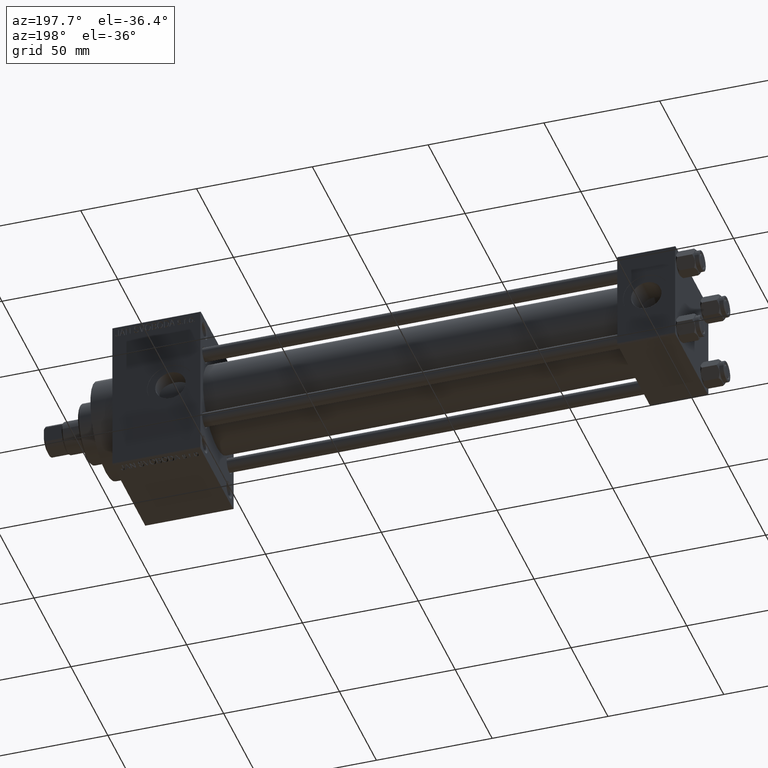
[diagram: clean part render]
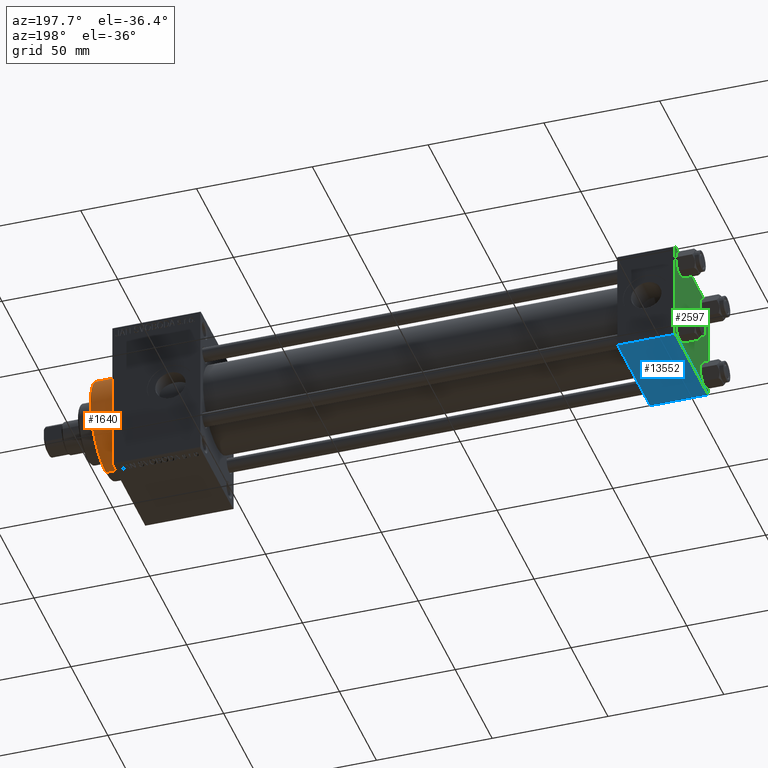
[diagram: same view with three faces highlighted in distinct colors, each labeled with its STEP entity id]
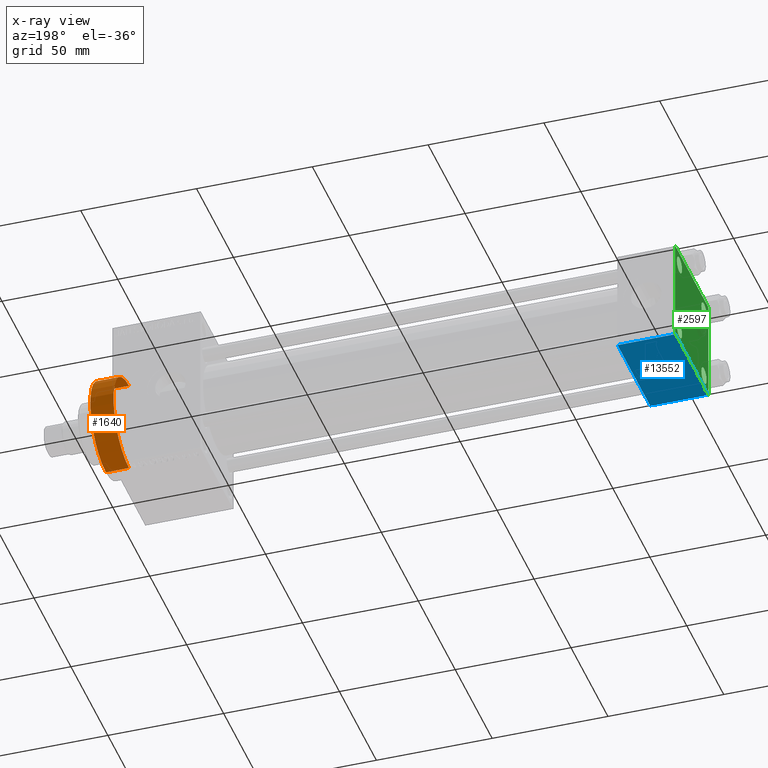
[diagram: x-ray of the same camera — body ghosted, the three highlighted faces saturated]
A machine part, auxiliary view with three faces highlighted in distinct colors.
The next image is the same camera in x-ray (body ghosted, the three faces saturated) — at least one of them is partly hidden behind the body in this view.
Their STEP definitions:

[orange] entity #1640 — the highlighted cylindrical surface (partial cylindrical patch) has radius 21 mm, axis along (-1, -0, -0).
#177 = CARTESIAN_POINT ( 'NONE',  ( 253.0000000000000000, 0.000000000000000000, 21.00000000000000000 ) ) ;
#187 = DIRECTION ( 'NONE',  ( -1.000000000000000000, -0.000000000000000000, -0.000000000000000000 ) ) ;
#974 = CARTESIAN_POINT ( 'NONE',  ( 243.0000000000000000, 0.000000000000000000, 0.000000000000000000 ) ) ;
#1640 = ADVANCED_FACE ( 'NONE', ( #42120 ), #11386, .T. ) ;
#1663 = ORIENTED_EDGE ( 'NONE', *, *, #38758, .T. ) ;
#2947 = AXIS2_PLACEMENT_3D ( 'NONE', #30962, #187, #3683 ) ;
#3490 = DIRECTION ( 'NONE',  ( 0.000000000000000000, 0.000000000000000000, -1.000000000000000000 ) ) ;
#3683 = DIRECTION ( 'NONE',  ( 0.000000000000000000, 0.000000000000000000, 1.000000000000000000 ) ) ;
#7225 = CARTESIAN_POINT ( 'NONE',  ( 253.0000000000000000, 0.000000000000000000, 0.000000000000000000 ) ) ;
#7507 = EDGE_CURVE ( 'NONE', #28952, #41580, #22947, .T. ) ;
#8274 = VERTEX_POINT ( 'NONE', #17192 ) ;
#8553 = ORIENTED_EDGE ( 'NONE', *, *, #8824, .T. ) ;
#8824 = EDGE_CURVE ( 'NONE', #36527, #8274, #12146, .T. ) ;
#11386 = CYLINDRICAL_SURFACE ( 'NONE', #2947, 21.00000000000000000 ) ;
#12146 = LINE ( 'NONE', #18857, #22091 ) ;
#12977 = EDGE_CURVE ( 'NONE', #36527, #28952, #47565, .T. ) ;
#15240 = ORIENTED_EDGE ( 'NONE', *, *, #7507, .F. ) ;
#15531 = EDGE_LOOP ( 'NONE', ( #30787, #8553, #1663, #15240 ) ) ;
#16118 = DIRECTION ( 'NONE',  ( 0.000000000000000000, 0.000000000000000000, -1.000000000000000000 ) ) ;
#17192 = CARTESIAN_POINT ( 'NONE',  ( 243.0000000000000000, 2.571758278209441661E-15, -21.00000000000000000 ) ) ;
#17288 = VECTOR ( 'NONE', #26664, 1000.000000000000000 ) ;
#18857 = CARTESIAN_POINT ( 'NONE',  ( 253.0000000000000000, 2.571758278209441661E-15, -21.00000000000000000 ) ) ;
#20231 = CARTESIAN_POINT ( 'NONE',  ( 243.0000000000000000, 0.000000000000000000, 21.00000000000000000 ) ) ;
#21869 = DIRECTION ( 'NONE',  ( 1.000000000000000000, 0.000000000000000000, 0.000000000000000000 ) ) ;
#22091 = VECTOR ( 'NONE', #42404, 1000.000000000000000 ) ;
#22947 = LINE ( 'NONE', #30871, #17288 ) ;
#26664 = DIRECTION ( 'NONE',  ( -1.000000000000000000, -0.000000000000000000, -0.000000000000000000 ) ) ;
#28952 = VERTEX_POINT ( 'NONE', #177 ) ;
#30486 = CIRCLE ( 'NONE', #48684, 21.00000000000000000 ) ;
#30787 = ORIENTED_EDGE ( 'NONE', *, *, #12977, .F. ) ;
#30871 = CARTESIAN_POINT ( 'NONE',  ( 253.0000000000000000, 0.000000000000000000, 21.00000000000000000 ) ) ;
#30962 = CARTESIAN_POINT ( 'NONE',  ( 253.0000000000000000, 0.000000000000000000, 0.000000000000000000 ) ) ;
#35731 = CARTESIAN_POINT ( 'NONE',  ( 253.0000000000000000, 2.571758278209441661E-15, -21.00000000000000000 ) ) ;
#36527 = VERTEX_POINT ( 'NONE', #35731 ) ;
#37318 = AXIS2_PLACEMENT_3D ( 'NONE', #7225, #21869, #3490 ) ;
#38758 = EDGE_CURVE ( 'NONE', #8274, #41580, #30486, .T. ) ;
#41580 = VERTEX_POINT ( 'NONE', #20231 ) ;
#42120 = FACE_OUTER_BOUND ( 'NONE', #15531, .T. ) ;
#42404 = DIRECTION ( 'NONE',  ( -1.000000000000000000, -0.000000000000000000, -0.000000000000000000 ) ) ;
#46380 = DIRECTION ( 'NONE',  ( 1.000000000000000000, 0.000000000000000000, 0.000000000000000000 ) ) ;
#47565 = CIRCLE ( 'NONE', #37318, 21.00000000000000000 ) ;
#48684 = AXIS2_PLACEMENT_3D ( 'NONE', #974, #46380, #16118 ) ;

[blue] entity #13552 — the highlighted planar face has unit normal (0, 0, -1).
#1221 = ORIENTED_EDGE ( 'NONE', *, *, #12646, .T. ) ;
#3204 = CARTESIAN_POINT ( 'NONE',  ( 0.000000000000000000, -21.99999999999998579, -22.50000000000000711 ) ) ;
#7091 = VERTEX_POINT ( 'NONE', #15074 ) ;
#8713 = VECTOR ( 'NONE', #40040, 1000.000000000000000 ) ;
#9087 = ORIENTED_EDGE ( 'NONE', *, *, #31088, .T. ) ;
#9360 = LINE ( 'NONE', #16312, #23221 ) ;
#10516 = DIRECTION ( 'NONE',  ( 0.000000000000000000, 2.312964634635742957E-16, -1.000000000000000000 ) ) ;
#12646 = EDGE_CURVE ( 'NONE', #40795, #7091, #28883, .T. ) ;
#13459 = DIRECTION ( 'NONE',  ( 0.000000000000000000, -1.000000000000000000, -2.312964634635742957E-16 ) ) ;
#13552 = ADVANCED_FACE ( 'NONE', ( #32120 ), #17952, .T. ) ;
#14243 = CARTESIAN_POINT ( 'NONE',  ( 25.00000000000000000, 21.99999999999999289, -22.49999999999999645 ) ) ;
#15074 = CARTESIAN_POINT ( 'NONE',  ( 25.00000000000000000, 21.99999999999999289, -22.49999999999999645 ) ) ;
#16312 = CARTESIAN_POINT ( 'NONE',  ( 0.000000000000000000, 22.50000000000000000, -22.49999999999999645 ) ) ;
#17044 = DIRECTION ( 'NONE',  ( 0.000000000000000000, -1.000000000000000000, -2.312964634635742957E-16 ) ) ;
#17705 = CARTESIAN_POINT ( 'NONE',  ( 25.00000000000000000, 22.50000000000000000, -22.49999999999999645 ) ) ;
#17952 = PLANE ( 'NONE',  #20655 ) ;
#20655 = AXIS2_PLACEMENT_3D ( 'NONE', #17705, #10516, #47979 ) ;
#22086 = VECTOR ( 'NONE', #13459, 1000.000000000000000 ) ;
#23221 = VECTOR ( 'NONE', #17044, 1000.000000000000000 ) ;
#23466 = EDGE_LOOP ( 'NONE', ( #27404, #1221, #34430, #9087 ) ) ;
#24376 = LINE ( 'NONE', #39994, #22086 ) ;
#25807 = LINE ( 'NONE', #3204, #27962 ) ;
#25935 = VERTEX_POINT ( 'NONE', #48820 ) ;
#27404 = ORIENTED_EDGE ( 'NONE', *, *, #30369, .F. ) ;
#27962 = VECTOR ( 'NONE', #33493, 1000.000000000000000 ) ;
#28883 = LINE ( 'NONE', #14243, #8713 ) ;
#30369 = EDGE_CURVE ( 'NONE', #40795, #25935, #9360, .T. ) ;
#31088 = EDGE_CURVE ( 'NONE', #45422, #25935, #25807, .T. ) ;
#32120 = FACE_OUTER_BOUND ( 'NONE', #23466, .T. ) ;
#33493 = DIRECTION ( 'NONE',  ( -1.000000000000000000, 0.000000000000000000, 0.000000000000000000 ) ) ;
#34430 = ORIENTED_EDGE ( 'NONE', *, *, #48378, .T. ) ;
#39325 = CARTESIAN_POINT ( 'NONE',  ( 0.000000000000000000, 21.99999999999999289, -22.49999999999999645 ) ) ;
#39994 = CARTESIAN_POINT ( 'NONE',  ( 25.00000000000000000, 22.50000000000000000, -22.49999999999999645 ) ) ;
#40040 = DIRECTION ( 'NONE',  ( 1.000000000000000000, 0.000000000000000000, 0.000000000000000000 ) ) ;
#40795 = VERTEX_POINT ( 'NONE', #39325 ) ;
#45422 = VERTEX_POINT ( 'NONE', #47768 ) ;
#47768 = CARTESIAN_POINT ( 'NONE',  ( 25.00000000000000000, -21.99999999999997158, -22.50000000000000711 ) ) ;
#47979 = DIRECTION ( 'NONE',  ( 0.000000000000000000, 1.000000000000000000, 2.312964634635742957E-16 ) ) ;
#48378 = EDGE_CURVE ( 'NONE', #7091, #45422, #24376, .T. ) ;
#48820 = CARTESIAN_POINT ( 'NONE',  ( 0.000000000000000000, -21.99999999999997158, -22.50000000000000711 ) ) ;

[green] entity #2597 — the highlighted planar face has unit normal (-1, 0, 0).
#208 = DIRECTION ( 'NONE',  ( 0.000000000000000000, 0.000000000000000000, -1.000000000000000000 ) ) ;
#434 = FACE_BOUND ( 'NONE', #32234, .T. ) ;
#1027 = CARTESIAN_POINT ( 'NONE',  ( 0.000000000000000000, -16.59999999999999076, -13.10000000000001030 ) ) ;
#1213 = VERTEX_POINT ( 'NONE', #39000 ) ;
#1375 = ORIENTED_EDGE ( 'NONE', *, *, #36457, .T. ) ;
#1415 = EDGE_CURVE ( 'NONE', #34268, #11734, #46507, .T. ) ;
#1553 = VERTEX_POINT ( 'NONE', #6916 ) ;
#2157 = VECTOR ( 'NONE', #8579, 1000.000000000000000 ) ;
#2597 = ADVANCED_FACE ( 'NONE', ( #3690, #30969, #18825, #434, #26282 ), #7418, .T. ) ;
#3528 = VECTOR ( 'NONE', #18660, 999.9999999999998863 ) ;
#3690 = FACE_BOUND ( 'NONE', #34990, .T. ) ;
#4110 = LINE ( 'NONE', #19256, #4255 ) ;
#4255 = VECTOR ( 'NONE', #36106, 1000.000000000000000 ) ;
#4433 = LINE ( 'NONE', #8182, #21568 ) ;
#4446 = EDGE_CURVE ( 'NONE', #6860, #29561, #11879, .T. ) ;
#4480 = CARTESIAN_POINT ( 'NONE',  ( 0.000000000000000000, 16.59999999999999787, 16.60000000000000497 ) ) ;
#4607 = ORIENTED_EDGE ( 'NONE', *, *, #36162, .F. ) ;
#5061 = ORIENTED_EDGE ( 'NONE', *, *, #46571, .T. ) ;
#5263 = VECTOR ( 'NONE', #208, 1000.000000000000000 ) ;
#5615 = EDGE_CURVE ( 'NONE', #25935, #24447, #38129, .T. ) ;
#6024 = AXIS2_PLACEMENT_3D ( 'NONE', #26520, #45845, #23518 ) ;
#6045 = VERTEX_POINT ( 'NONE', #17119 ) ;
#6371 = CIRCLE ( 'NONE', #45208, 3.499999999999996003 ) ;
#6425 = CARTESIAN_POINT ( 'NONE',  ( 0.000000000000000000, -22.50000000000000000, 22.50000000000000000 ) ) ;
#6696 = CARTESIAN_POINT ( 'NONE',  ( 0.000000000000000000, -16.59999999999999076, 16.60000000000000853 ) ) ;
#6860 = VERTEX_POINT ( 'NONE', #29665 ) ;
#6916 = CARTESIAN_POINT ( 'NONE',  ( 0.000000000000000000, 16.59999999999999787, -20.10000000000000142 ) ) ;
#7418 = PLANE ( 'NONE',  #6024 ) ;
#8182 = CARTESIAN_POINT ( 'NONE',  ( 0.000000000000000000, 22.24999999999999645, 22.24999999999999645 ) ) ;
#8272 = CIRCLE ( 'NONE', #25703, 3.499999999999996003 ) ;
#8579 = DIRECTION ( 'NONE',  ( 0.000000000000000000, -0.7071067811865426878, 0.7071067811865524577 ) ) ;
#8925 = DIRECTION ( 'NONE',  ( 0.000000000000000000, 0.000000000000000000, 1.000000000000000000 ) ) ;
#9268 = EDGE_CURVE ( 'NONE', #1553, #32797, #18146, .T. ) ;
#9360 = LINE ( 'NONE', #16312, #23221 ) ;
#9593 = ORIENTED_EDGE ( 'NONE', *, *, #48501, .T. ) ;
#9666 = VERTEX_POINT ( 'NONE', #44839 ) ;
#9921 = DIRECTION ( 'NONE',  ( 0.000000000000000000, 0.000000000000000000, 1.000000000000000000 ) ) ;
#10033 = DIRECTION ( 'NONE',  ( 0.000000000000000000, 0.000000000000000000, 1.000000000000000000 ) ) ;
#11734 = VERTEX_POINT ( 'NONE', #1027 ) ;
#11879 = LINE ( 'NONE', #24196, #5263 ) ;
#12162 = ORIENTED_EDGE ( 'NONE', *, *, #28666, .T. ) ;
#12477 = CARTESIAN_POINT ( 'NONE',  ( 0.000000000000000000, -16.59999999999999076, 20.10000000000000853 ) ) ;
#12796 = ORIENTED_EDGE ( 'NONE', *, *, #9268, .T. ) ;
#13547 = EDGE_CURVE ( 'NONE', #32797, #1553, #28602, .T. ) ;
#14145 = DIRECTION ( 'NONE',  ( 0.000000000000000000, 0.000000000000000000, 1.000000000000000000 ) ) ;
#14157 = EDGE_CURVE ( 'NONE', #14995, #24447, #28026, .T. ) ;
#14255 = ORIENTED_EDGE ( 'NONE', *, *, #5615, .T. ) ;
#14507 = DIRECTION ( 'NONE',  ( 0.000000000000000000, -1.000000000000000000, -7.709882115452476934E-17 ) ) ;
#14981 = CIRCLE ( 'NONE', #49033, 3.499999999999996003 ) ;
#14995 = VERTEX_POINT ( 'NONE', #21312 ) ;
#16025 = CARTESIAN_POINT ( 'NONE',  ( 0.000000000000000000, -22.25000000000014566, -22.24999999999984013 ) ) ;
#16059 = EDGE_CURVE ( 'NONE', #35353, #21075, #6371, .T. ) ;
#16292 = EDGE_LOOP ( 'NONE', ( #36518, #12796 ) ) ;
#16312 = CARTESIAN_POINT ( 'NONE',  ( 0.000000000000000000, 22.50000000000000000, -22.49999999999999645 ) ) ;
#17044 = DIRECTION ( 'NONE',  ( 0.000000000000000000, -1.000000000000000000, -2.312964634635742957E-16 ) ) ;
#17119 = CARTESIAN_POINT ( 'NONE',  ( 0.000000000000000000, 16.59999999999999787, 13.10000000000000675 ) ) ;
#17394 = CARTESIAN_POINT ( 'NONE',  ( 0.000000000000000000, -16.59999999999999076, 16.60000000000000853 ) ) ;
#18127 = DIRECTION ( 'NONE',  ( 0.000000000000000000, 0.000000000000000000, 1.000000000000000000 ) ) ;
#18146 = CIRCLE ( 'NONE', #30799, 3.499999999999996003 ) ;
#18218 = LINE ( 'NONE', #33361, #36864 ) ;
#18413 = LINE ( 'NONE', #45927, #3528 ) ;
#18660 = DIRECTION ( 'NONE',  ( -0.000000000000000000, 0.7071067811865525687, 0.7071067811865425767 ) ) ;
#18825 = FACE_BOUND ( 'NONE', #16292, .T. ) ;
#19256 = CARTESIAN_POINT ( 'NONE',  ( 0.000000000000000000, 22.25000000000014566, -22.24999999999984013 ) ) ;
#19433 = CARTESIAN_POINT ( 'NONE',  ( 0.000000000000000000, 22.50000000000000000, -21.99999999999996803 ) ) ;
#19666 = AXIS2_PLACEMENT_3D ( 'NONE', #17394, #47664, #20628 ) ;
#20628 = DIRECTION ( 'NONE',  ( 0.000000000000000000, 0.000000000000000000, 1.000000000000000000 ) ) ;
#21075 = VERTEX_POINT ( 'NONE', #45740 ) ;
#21312 = CARTESIAN_POINT ( 'NONE',  ( 0.000000000000000000, -22.50000000000000000, 22.00000000000000000 ) ) ;
#21337 = CARTESIAN_POINT ( 'NONE',  ( 0.000000000000000000, 16.59999999999999787, 16.60000000000000497 ) ) ;
#21568 = VECTOR ( 'NONE', #37975, 1000.000000000000114 ) ;
#21864 = DIRECTION ( 'NONE',  ( 1.000000000000000000, -0.000000000000000000, 0.000000000000000000 ) ) ;
#22603 = AXIS2_PLACEMENT_3D ( 'NONE', #21337, #24318, #9921 ) ;
#23221 = VECTOR ( 'NONE', #17044, 1000.000000000000000 ) ;
#23349 = CARTESIAN_POINT ( 'NONE',  ( 0.000000000000000000, -16.59999999999999076, -16.60000000000000853 ) ) ;
#23518 = DIRECTION ( 'NONE',  ( -0.000000000000000000, 0.000000000000000000, 1.000000000000000000 ) ) ;
#23667 = CARTESIAN_POINT ( 'NONE',  ( 0.000000000000000000, -16.59999999999999076, -20.10000000000000497 ) ) ;
#24196 = CARTESIAN_POINT ( 'NONE',  ( 0.000000000000000000, 22.50000000000000000, 22.50000000000000355 ) ) ;
#24318 = DIRECTION ( 'NONE',  ( 1.000000000000000000, -0.000000000000000000, 0.000000000000000000 ) ) ;
#24447 = VERTEX_POINT ( 'NONE', #36689 ) ;
#25354 = ORIENTED_EDGE ( 'NONE', *, *, #33673, .T. ) ;
#25411 = AXIS2_PLACEMENT_3D ( 'NONE', #40533, #47482, #10033 ) ;
#25703 = AXIS2_PLACEMENT_3D ( 'NONE', #4480, #47128, #14145 ) ;
#25935 = VERTEX_POINT ( 'NONE', #48820 ) ;
#26282 = FACE_OUTER_BOUND ( 'NONE', #44424, .T. ) ;
#26520 = CARTESIAN_POINT ( 'NONE',  ( 0.000000000000000000, 0.000000000000000000, 0.000000000000000000 ) ) ;
#28026 = LINE ( 'NONE', #6425, #48426 ) ;
#28602 = CIRCLE ( 'NONE', #25411, 3.499999999999996003 ) ;
#28640 = ORIENTED_EDGE ( 'NONE', *, *, #30369, .T. ) ;
#28666 = EDGE_CURVE ( 'NONE', #1213, #6860, #4433, .T. ) ;
#29517 = CARTESIAN_POINT ( 'NONE',  ( 0.000000000000000000, -21.99999999999997868, 22.50000000000000000 ) ) ;
#29561 = VERTEX_POINT ( 'NONE', #19433 ) ;
#29665 = CARTESIAN_POINT ( 'NONE',  ( 0.000000000000000000, 22.50000000000000000, 21.99999999999999645 ) ) ;
#30369 = EDGE_CURVE ( 'NONE', #40795, #25935, #9360, .T. ) ;
#30799 = AXIS2_PLACEMENT_3D ( 'NONE', #35581, #31862, #36318 ) ;
#30850 = EDGE_LOOP ( 'NONE', ( #9593, #35965 ) ) ;
#30969 = FACE_BOUND ( 'NONE', #30850, .T. ) ;
#31862 = DIRECTION ( 'NONE',  ( 1.000000000000000000, -0.000000000000000000, 0.000000000000000000 ) ) ;
#32234 = EDGE_LOOP ( 'NONE', ( #1375, #25354 ) ) ;
#32797 = VERTEX_POINT ( 'NONE', #41360 ) ;
#32863 = EDGE_CURVE ( 'NONE', #29561, #40795, #4110, .T. ) ;
#33361 = CARTESIAN_POINT ( 'NONE',  ( 0.000000000000000000, 22.50000000000000000, 22.50000000000000355 ) ) ;
#33497 = EDGE_CURVE ( 'NONE', #14995, #48761, #18413, .T. ) ;
#33673 = EDGE_CURVE ( 'NONE', #6045, #9666, #8272, .T. ) ;
#33719 = CIRCLE ( 'NONE', #22603, 3.499999999999996003 ) ;
#34268 = VERTEX_POINT ( 'NONE', #23667 ) ;
#34990 = EDGE_LOOP ( 'NONE', ( #47221, #5061 ) ) ;
#35353 = VERTEX_POINT ( 'NONE', #12477 ) ;
#35468 = ORIENTED_EDGE ( 'NONE', *, *, #14157, .F. ) ;
#35581 = CARTESIAN_POINT ( 'NONE',  ( 0.000000000000000000, 16.59999999999999787, -16.60000000000000497 ) ) ;
#35965 = ORIENTED_EDGE ( 'NONE', *, *, #1415, .T. ) ;
#36106 = DIRECTION ( 'NONE',  ( -0.000000000000000000, -0.7071067811865426878, -0.7071067811865524577 ) ) ;
#36162 = EDGE_CURVE ( 'NONE', #1213, #48761, #18218, .T. ) ;
#36318 = DIRECTION ( 'NONE',  ( 0.000000000000000000, 0.000000000000000000, 1.000000000000000000 ) ) ;
#36457 = EDGE_CURVE ( 'NONE', #9666, #6045, #33719, .T. ) ;
#36518 = ORIENTED_EDGE ( 'NONE', *, *, #13547, .T. ) ;
#36689 = CARTESIAN_POINT ( 'NONE',  ( 0.000000000000000000, -22.50000000000000000, -21.99999999999997158 ) ) ;
#36864 = VECTOR ( 'NONE', #14507, 1000.000000000000000 ) ;
#36980 = DIRECTION ( 'NONE',  ( 1.000000000000000000, -0.000000000000000000, 0.000000000000000000 ) ) ;
#37883 = ORIENTED_EDGE ( 'NONE', *, *, #33497, .T. ) ;
#37975 = DIRECTION ( 'NONE',  ( 0.000000000000000000, 0.7071067811865474617, -0.7071067811865474617 ) ) ;
#38129 = LINE ( 'NONE', #16025, #2157 ) ;
#39000 = CARTESIAN_POINT ( 'NONE',  ( 0.000000000000000000, 21.99999999999999289, 22.50000000000000355 ) ) ;
#39325 = CARTESIAN_POINT ( 'NONE',  ( 0.000000000000000000, 21.99999999999999289, -22.49999999999999645 ) ) ;
#40533 = CARTESIAN_POINT ( 'NONE',  ( 0.000000000000000000, 16.59999999999999787, -16.60000000000000497 ) ) ;
#40712 = CARTESIAN_POINT ( 'NONE',  ( 0.000000000000000000, -16.59999999999999076, -16.60000000000000853 ) ) ;
#40795 = VERTEX_POINT ( 'NONE', #39325 ) ;
#41360 = CARTESIAN_POINT ( 'NONE',  ( 0.000000000000000000, 16.59999999999999787, -13.10000000000000675 ) ) ;
#41782 = AXIS2_PLACEMENT_3D ( 'NONE', #40712, #21864, #18127 ) ;
#42193 = DIRECTION ( 'NONE',  ( 1.000000000000000000, -0.000000000000000000, 0.000000000000000000 ) ) ;
#43397 = DIRECTION ( 'NONE',  ( 0.000000000000000000, 0.000000000000000000, -1.000000000000000000 ) ) ;
#44424 = EDGE_LOOP ( 'NONE', ( #46812, #46975, #28640, #14255, #35468, #37883, #4607, #12162 ) ) ;
#44839 = CARTESIAN_POINT ( 'NONE',  ( 0.000000000000000000, 16.59999999999999787, 20.10000000000000142 ) ) ;
#45208 = AXIS2_PLACEMENT_3D ( 'NONE', #6696, #36980, #47884 ) ;
#45740 = CARTESIAN_POINT ( 'NONE',  ( 0.000000000000000000, -16.59999999999999076, 13.10000000000001030 ) ) ;
#45798 = CIRCLE ( 'NONE', #19666, 3.499999999999996003 ) ;
#45845 = DIRECTION ( 'NONE',  ( -1.000000000000000000, 0.000000000000000000, -0.000000000000000000 ) ) ;
#45927 = CARTESIAN_POINT ( 'NONE',  ( -0.000000000000000000, -22.24999999999984013, 22.25000000000015277 ) ) ;
#46507 = CIRCLE ( 'NONE', #41782, 3.499999999999996003 ) ;
#46571 = EDGE_CURVE ( 'NONE', #21075, #35353, #45798, .T. ) ;
#46812 = ORIENTED_EDGE ( 'NONE', *, *, #4446, .T. ) ;
#46975 = ORIENTED_EDGE ( 'NONE', *, *, #32863, .T. ) ;
#47128 = DIRECTION ( 'NONE',  ( 1.000000000000000000, -0.000000000000000000, 0.000000000000000000 ) ) ;
#47221 = ORIENTED_EDGE ( 'NONE', *, *, #16059, .T. ) ;
#47482 = DIRECTION ( 'NONE',  ( 1.000000000000000000, -0.000000000000000000, 0.000000000000000000 ) ) ;
#47664 = DIRECTION ( 'NONE',  ( 1.000000000000000000, -0.000000000000000000, 0.000000000000000000 ) ) ;
#47884 = DIRECTION ( 'NONE',  ( 0.000000000000000000, 0.000000000000000000, 1.000000000000000000 ) ) ;
#48426 = VECTOR ( 'NONE', #43397, 1000.000000000000000 ) ;
#48501 = EDGE_CURVE ( 'NONE', #11734, #34268, #14981, .T. ) ;
#48761 = VERTEX_POINT ( 'NONE', #29517 ) ;
#48820 = CARTESIAN_POINT ( 'NONE',  ( 0.000000000000000000, -21.99999999999997158, -22.50000000000000711 ) ) ;
#49033 = AXIS2_PLACEMENT_3D ( 'NONE', #23349, #42193, #8925 ) ;